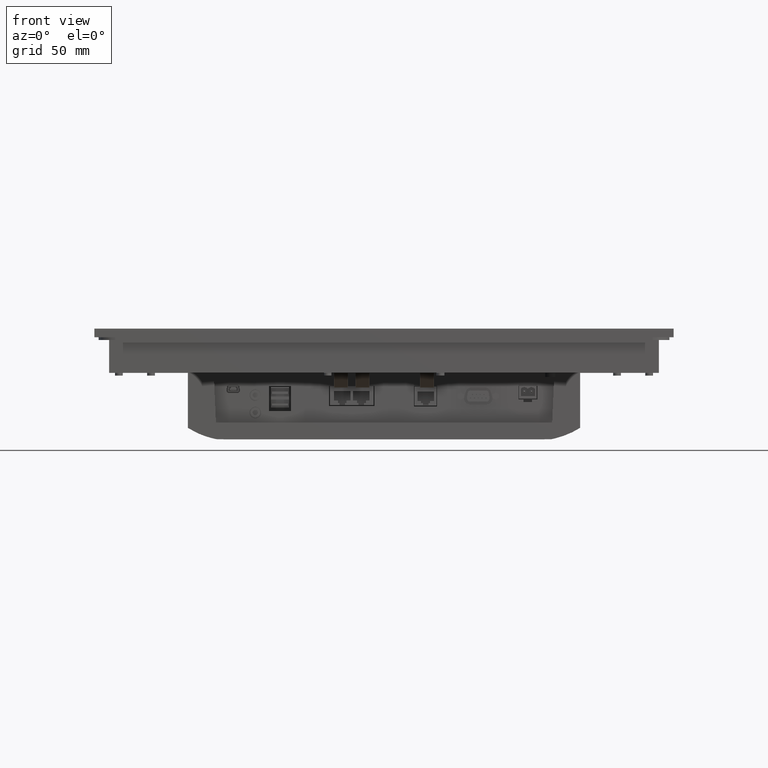
[diagram: clean part render]
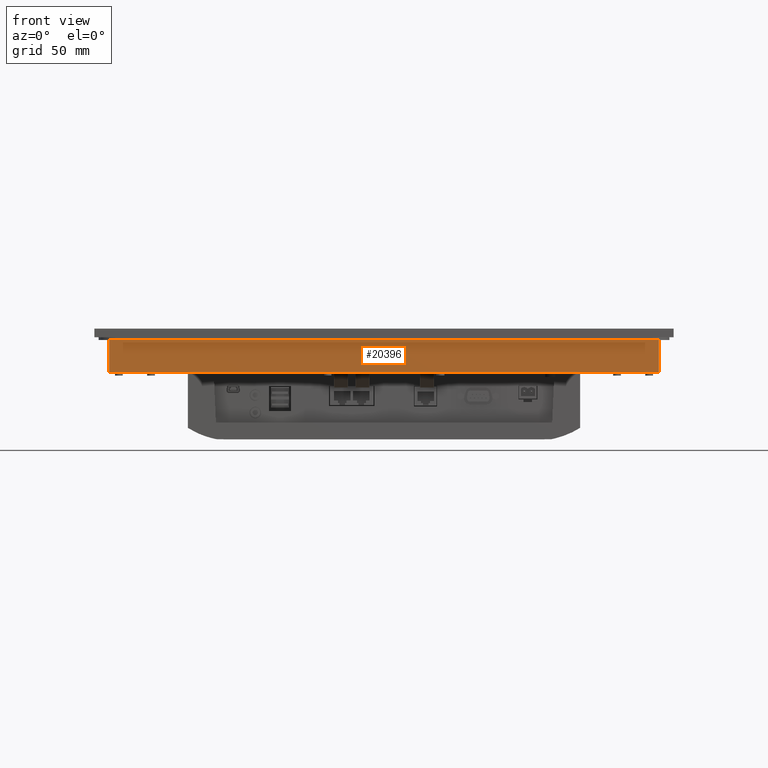
[diagram: same view with one face highlighted and labeled with its STEP entity id]
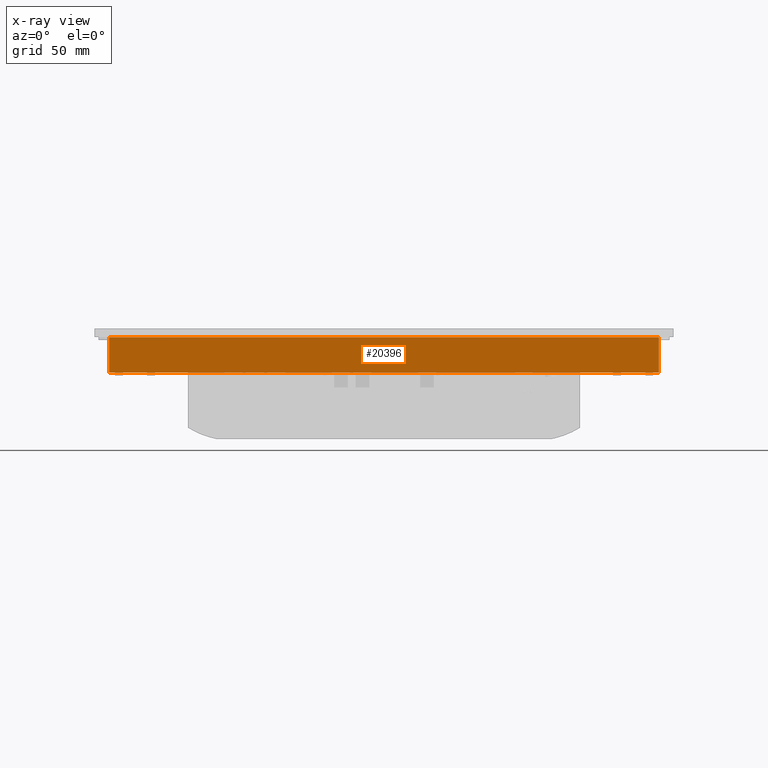
[diagram: x-ray of the same camera — body ghosted, the highlighted face saturated]
A machine part, front view. The second image highlights one B-rep face of the part: STEP entity #20396.
The next image is the same camera in x-ray: the body ghosted, the highlighted face saturated — about 0% of this face is hidden behind the body in this view.
In plain terms, the highlighted planar face has unit normal (0, 1, 0).
Its self-contained STEP definition (entity closure, byte-faithful):
#4504=LINE('',#72812,#9999);
#4550=LINE('',#72910,#10045);
#4590=LINE('',#73017,#10085);
#4592=LINE('',#73020,#10087);
#9999=VECTOR('',#59690,1.);
#10045=VECTOR('',#59752,1.);
#10085=VECTOR('',#59862,1.);
#10087=VECTOR('',#59866,1.);
#15369=FACE_OUTER_BOUND('',#24488,.T.);
#17876=PLANE('',#54772);
#20396=ADVANCED_FACE('',(#15369),#17876,.F.);
#24488=EDGE_LOOP('',(#29529,#29530,#29531,#29532));
#29529=ORIENTED_EDGE('',*,*,#47335,.T.);
#29530=ORIENTED_EDGE('',*,*,#47389,.F.);
#29531=ORIENTED_EDGE('',*,*,#47285,.F.);
#29532=ORIENTED_EDGE('',*,*,#47387,.T.);
#42234=VERTEX_POINT('',#72811);
#42235=VERTEX_POINT('',#72813);
#42279=VERTEX_POINT('',#72911);
#42280=VERTEX_POINT('',#72912);
#47285=EDGE_CURVE('',#42234,#42235,#4504,.T.);
#47335=EDGE_CURVE('',#42279,#42280,#4550,.T.);
#47387=EDGE_CURVE('',#42234,#42279,#4590,.T.);
#47389=EDGE_CURVE('',#42235,#42280,#4592,.T.);
#54772=AXIS2_PLACEMENT_3D('',#73021,#59867,#59868);
#59690=DIRECTION('',(1.,0.,0.));
#59752=DIRECTION('',(1.,0.,0.));
#59862=DIRECTION('',(0.,0.,1.));
#59866=DIRECTION('',(0.,0.,1.));
#59867=DIRECTION('',(0.,-1.,0.));
#59868=DIRECTION('',(0.,0.,-1.));
#72811=CARTESIAN_POINT('',(-196.949999,144.45,-28.));
#72812=CARTESIAN_POINT('',(-196.949999,144.45,-28.));
#72813=CARTESIAN_POINT('',(196.95,144.45,-28.));
#72910=CARTESIAN_POINT('',(-196.949999,144.45,-2.5));
#72911=CARTESIAN_POINT('',(-196.949999,144.45,-2.5));
#72912=CARTESIAN_POINT('',(196.95,144.45,-2.5));
#73017=CARTESIAN_POINT('',(-196.949999,144.45,-28.));
#73020=CARTESIAN_POINT('',(196.95,144.45,-28.));
#73021=CARTESIAN_POINT('',(-196.949999,144.45,-28.));